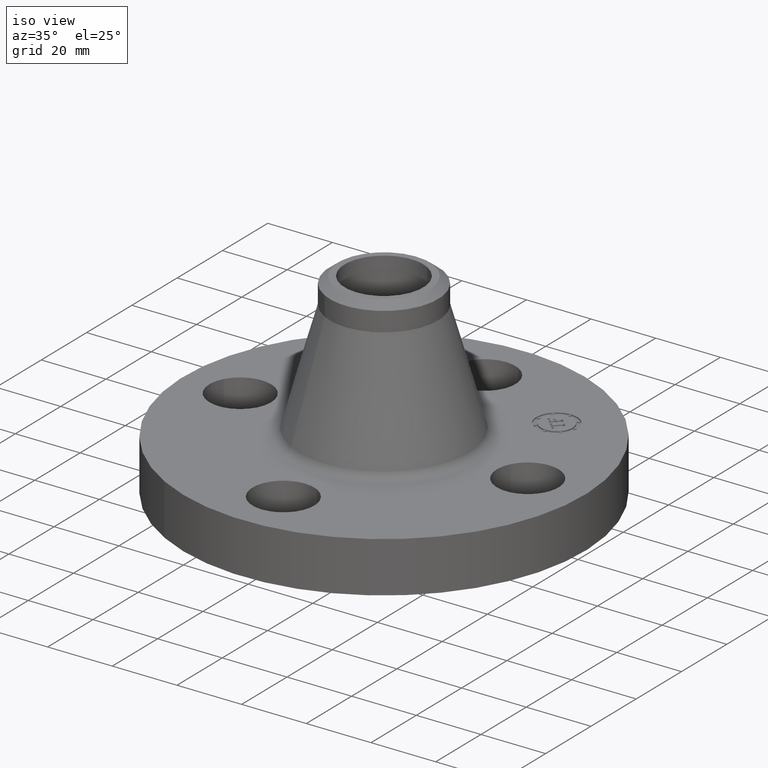
[diagram: clean part render]
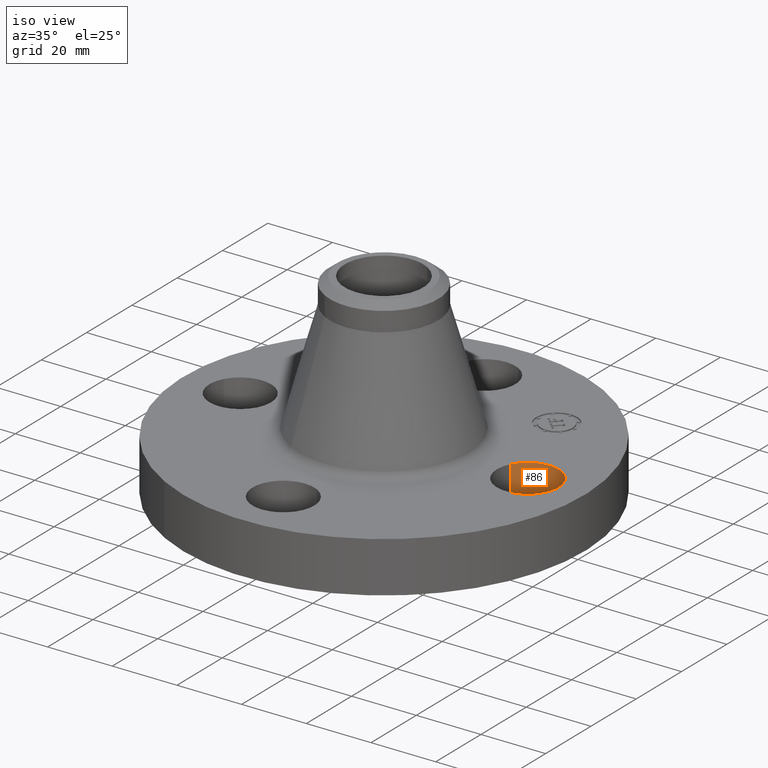
[diagram: same view with one face highlighted and labeled with its STEP entity id]
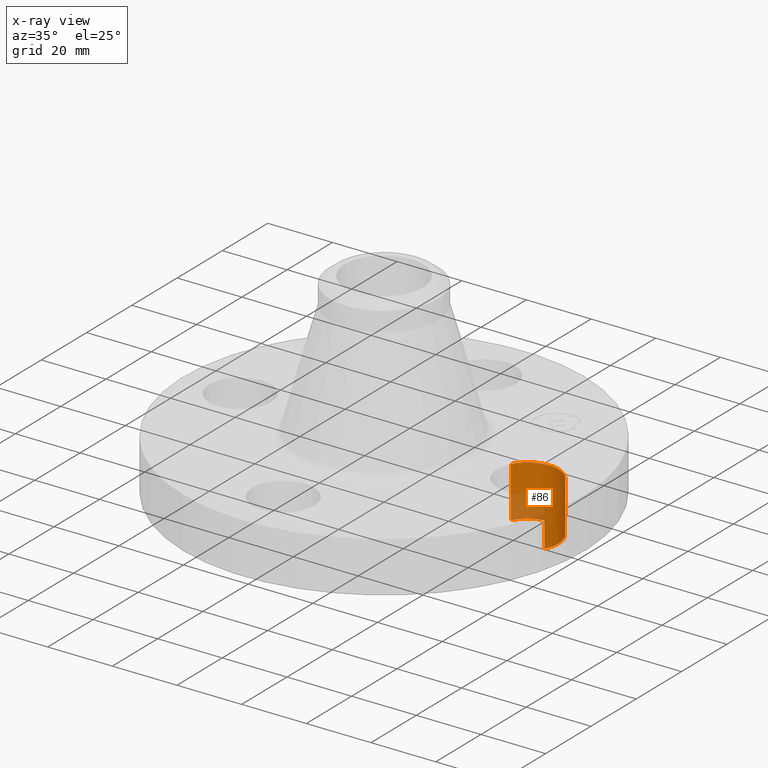
[diagram: x-ray of the same camera — body ghosted, the highlighted face saturated]
A machine part, iso view. The second image highlights one B-rep face of the part: STEP entity #86.
The next image is the same camera in x-ray: the body ghosted, the highlighted face saturated — about 24% of this face is hidden behind the body in this view.
In plain terms, the highlighted cylindrical surface (partial cylindrical patch) has radius 9.525 mm, axis along (0, -0, -1).
Its self-contained STEP definition (entity closure, byte-faithful):
#38=AXIS2_PLACEMENT_3D('Cylinder Axis2P3D',#35,#36,#37) ;
#51=AXIS2_PLACEMENT_3D('Circle Axis2P3D',#49,#50,$) ;
#35=CARTESIAN_POINT('Axis2P3D Location',(1.75000000001,0.,0.616062992128)) ;
#40=CARTESIAN_POINT('Line Origine',(1.4209065393,0.179784576977,0.310000000001)) ;
#44=CARTESIAN_POINT('Vertex',(1.4209065393,0.179784576977,0.)) ;
#46=CARTESIAN_POINT('Vertex',(1.4209065393,0.179784576977,0.619999999987)) ;
#49=CARTESIAN_POINT('Axis2P3D Location',(1.75000000001,0.,0.)) ;
#53=CARTESIAN_POINT('Vertex',(2.07909346072,-0.179784576977,2.55543617763E-013)) ;
#56=CARTESIAN_POINT('Line Origine',(2.07909346072,-0.179784576977,0.310000000001)) ;
#60=CARTESIAN_POINT('Vertex',(2.07909346074,-0.179784576955,0.620000000002)) ;
#64=CARTESIAN_POINT('Control Point',(1.4209065393,0.179784576977,0.620000000002)) ;
#65=CARTESIAN_POINT('Control Point',(1.44914703461,0.231478456903,0.620000000001)) ;
#66=CARTESIAN_POINT('Control Point',(1.48753759951,0.27762732854,0.620000000001)) ;
#67=CARTESIAN_POINT('Control Point',(1.53463466834,0.315564920645,0.62)) ;
#68=CARTESIAN_POINT('Control Point',(1.64116640576,0.370929207243,0.619999999998)) ;
#69=CARTESIAN_POINT('Control Point',(1.76072322347,0.38190110985,0.619999999997)) ;
#70=CARTESIAN_POINT('Control Point',(1.82085180885,0.375424381748,0.619999999996)) ;
#71=CARTESIAN_POINT('Control Point',(1.93532958528,0.339243530298,0.619999999995)) ;
#72=CARTESIAN_POINT('Control Point',(2.02762732855,0.262462400496,0.619999999993)) ;
#73=CARTESIAN_POINT('Control Point',(2.06556492066,0.215365331668,0.619999999992)) ;
#74=CARTESIAN_POINT('Control Point',(2.12092920725,0.108833594252,0.619999999991)) ;
#75=CARTESIAN_POINT('Control Point',(2.13190110986,-0.0107232234562,0.61999999999)) ;
#76=CARTESIAN_POINT('Control Point',(2.12542438176,-0.0708518088378,0.619999999989)) ;
#77=CARTESIAN_POINT('Control Point',(2.10733395603,-0.128090697051,0.619999999988)) ;
#78=CARTESIAN_POINT('Control Point',(2.07909346072,-0.179784576977,0.619999999987)) ;
#36=DIRECTION('Axis2P3D Direction',(0.,-0.,-0.0393700787402)) ;
#37=DIRECTION('Axis2P3D XDirection',(-0.0345504945626,0.0188750212049,0.)) ;
#41=DIRECTION('Vector Direction',(0.,0.,-0.0393700787402)) ;
#50=DIRECTION('Axis2P3D Direction',(0.,-0.,-0.0393700787402)) ;
#57=DIRECTION('Vector Direction',(0.,0.,-0.0393700787402)) ;
#42=VECTOR('Line Direction',#41,0.0393700787402) ;
#58=VECTOR('Line Direction',#57,0.0393700787402) ;
#81=ORIENTED_EDGE('',*,*,#48,.F.) ;
#82=ORIENTED_EDGE('',*,*,#55,.T.) ;
#83=ORIENTED_EDGE('',*,*,#62,.T.) ;
#84=ORIENTED_EDGE('',*,*,#79,.F.) ;
#86=ADVANCED_FACE('PartBody',(#85),#39,.F.) ;
#63=B_SPLINE_CURVE_WITH_KNOTS('',5,(#64,#65,#66,#67,#68,#69,#70,#71,#72,#73,#74,#75,#76,#77,#78),.UNSPECIFIED.,.F.,.U.,(6,3,3,3,6),(-14.9618350128,-7.48091750638,0.,7.48091750638,14.9618350128),.UNSPECIFIED.) ;
#52=CIRCLE('generated circle',#51,0.375000000001) ;
#39=CYLINDRICAL_SURFACE('generated cylinder',#38,0.375000000001) ;
#48=EDGE_CURVE('',#45,#47,#43,.F.) ;
#55=EDGE_CURVE('',#45,#54,#52,.T.) ;
#62=EDGE_CURVE('',#54,#61,#59,.F.) ;
#79=EDGE_CURVE('',#47,#61,#63,.T.) ;
#80=EDGE_LOOP('',(#81,#82,#83,#84)) ;
#85=FACE_OUTER_BOUND('',#80,.T.) ;
#43=LINE('Line',#40,#42) ;
#59=LINE('Line',#56,#58) ;
#45=VERTEX_POINT('',#44) ;
#47=VERTEX_POINT('',#46) ;
#54=VERTEX_POINT('',#53) ;
#61=VERTEX_POINT('',#60) ;